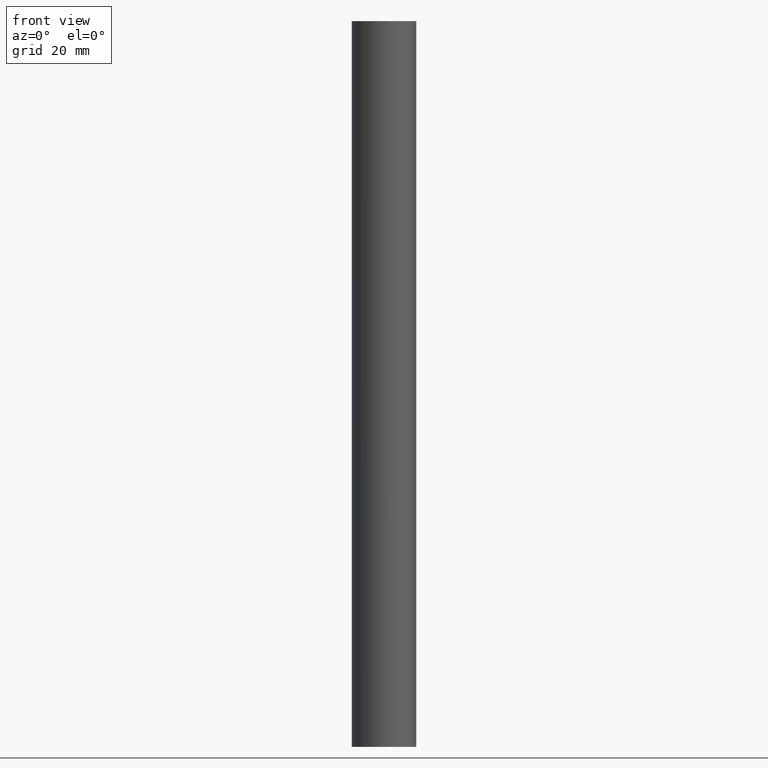
[diagram: clean part render]
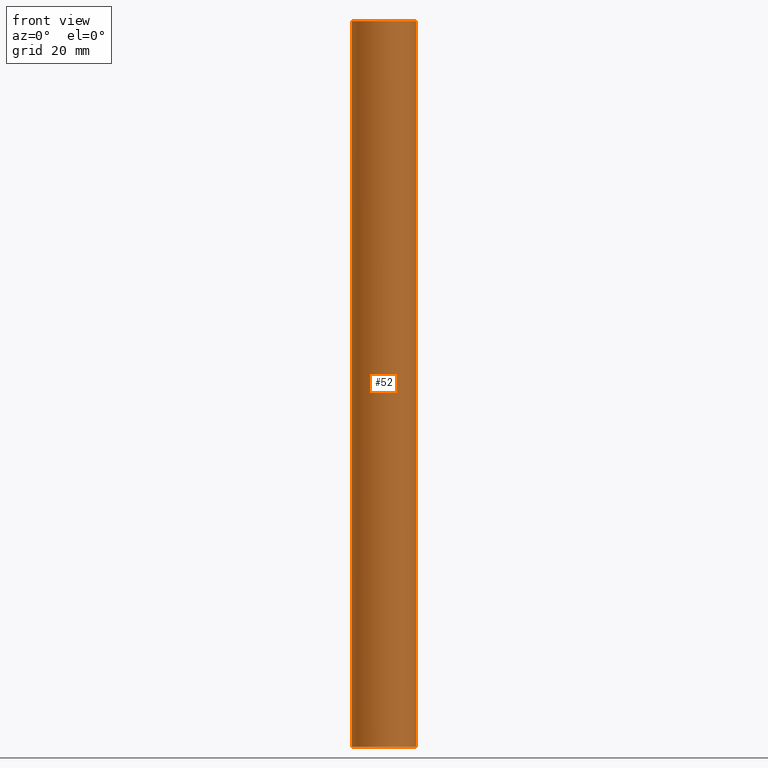
[diagram: same view with one face highlighted and labeled with its STEP entity id]
A machine part, front view. The second image highlights one B-rep face of the part: STEP entity #52.
In plain terms, the highlighted cylindrical surface (bore or boss wall) has radius 11 mm, axis along (0, 0, 1).
Its self-contained STEP definition (entity closure, byte-faithful):
#2=CARTESIAN_POINT('',(0.0,0.0,0.0));
#3=DIRECTION('',(0.0,0.0,1.0));
#4=DIRECTION('',(1.0,0.0,0.0));
#5=AXIS2_PLACEMENT_3D('',#2,#3,#4);
#6=CYLINDRICAL_SURFACE('',#5,11.0);
#7=CARTESIAN_POINT('',(11.0,0.0,0.0));
#8=VERTEX_POINT('',#7);
#9=CARTESIAN_POINT('',(-11.0,0.0,0.0));
#10=VERTEX_POINT('',#9);
#11=CARTESIAN_POINT('',(0.0,0.0,0.0));
#12=DIRECTION('',(0.0,0.0,1.0));
#13=DIRECTION('',(1.0,0.0,0.0));
#14=AXIS2_PLACEMENT_3D('',#11,#12,#13);
#15=CIRCLE('',#14,11.0);
#16=EDGE_CURVE('',#8,#10,#15,.T.);
#17=ORIENTED_EDGE('',*,*,#16,.T.);
#18=CARTESIAN_POINT('',(0.0,0.0,0.0));
#19=DIRECTION('',(0.0,0.0,1.0));
#20=DIRECTION('',(1.0,0.0,0.0));
#21=AXIS2_PLACEMENT_3D('',#18,#19,#20);
#22=CIRCLE('',#21,11.0);
#23=EDGE_CURVE('',#10,#8,#22,.T.);
#24=ORIENTED_EDGE('',*,*,#23,.T.);
#25=CARTESIAN_POINT('',(11.0,0.0,248.0));
#26=VERTEX_POINT('',#25);
#27=CARTESIAN_POINT('',(11.0,0.0,0.0));
#28=DIRECTION('',(0.0,0.0,1.0));
#29=VECTOR('',#28,248.0);
#30=LINE('',#27,#29);
#31=EDGE_CURVE('',#8,#26,#30,.T.);
#32=ORIENTED_EDGE('',*,*,#31,.T.);
#33=CARTESIAN_POINT('',(-11.0,0.0,248.0));
#34=VERTEX_POINT('',#33);
#35=CARTESIAN_POINT('',(0.0,0.0,248.0));
#36=DIRECTION('',(0.0,0.0,1.0));
#37=DIRECTION('',(1.0,0.0,0.0));
#38=AXIS2_PLACEMENT_3D('',#35,#36,#37);
#39=CIRCLE('',#38,11.0);
#40=EDGE_CURVE('',#34,#26,#39,.T.);
#41=ORIENTED_EDGE('',*,*,#40,.F.);
#42=CARTESIAN_POINT('',(0.0,0.0,248.0));
#43=DIRECTION('',(0.0,0.0,1.0));
#44=DIRECTION('',(1.0,0.0,0.0));
#45=AXIS2_PLACEMENT_3D('',#42,#43,#44);
#46=CIRCLE('',#45,11.0);
#47=EDGE_CURVE('',#26,#34,#46,.T.);
#48=ORIENTED_EDGE('',*,*,#47,.F.);
#49=ORIENTED_EDGE('',*,*,#31,.F.);
#50=EDGE_LOOP('',(#17,#24,#32,#41,#48,#49));
#51=FACE_OUTER_BOUND('',#50,.T.);
#52=ADVANCED_FACE('',(#51),#6,.T.);